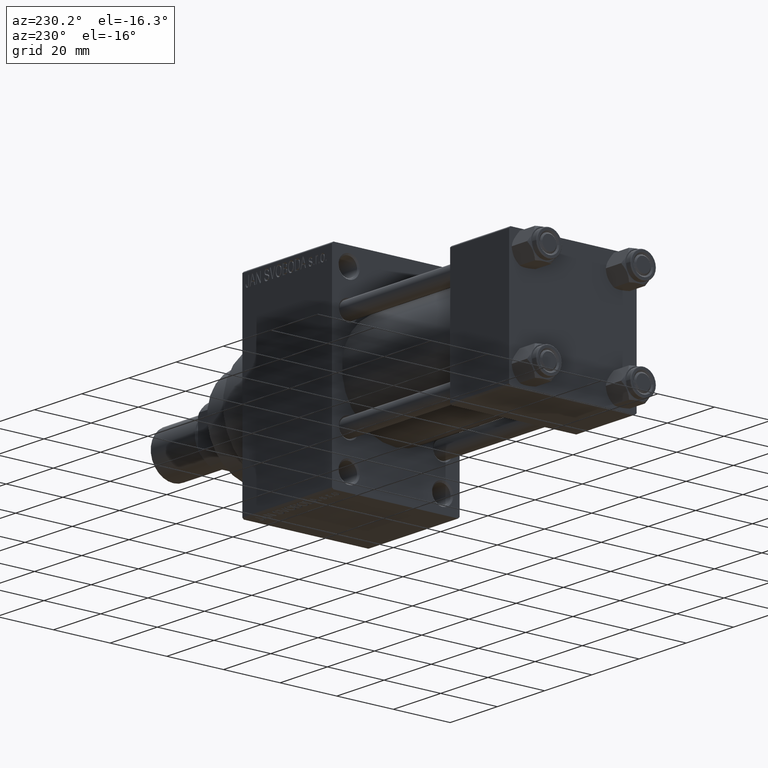
[diagram: clean part render]
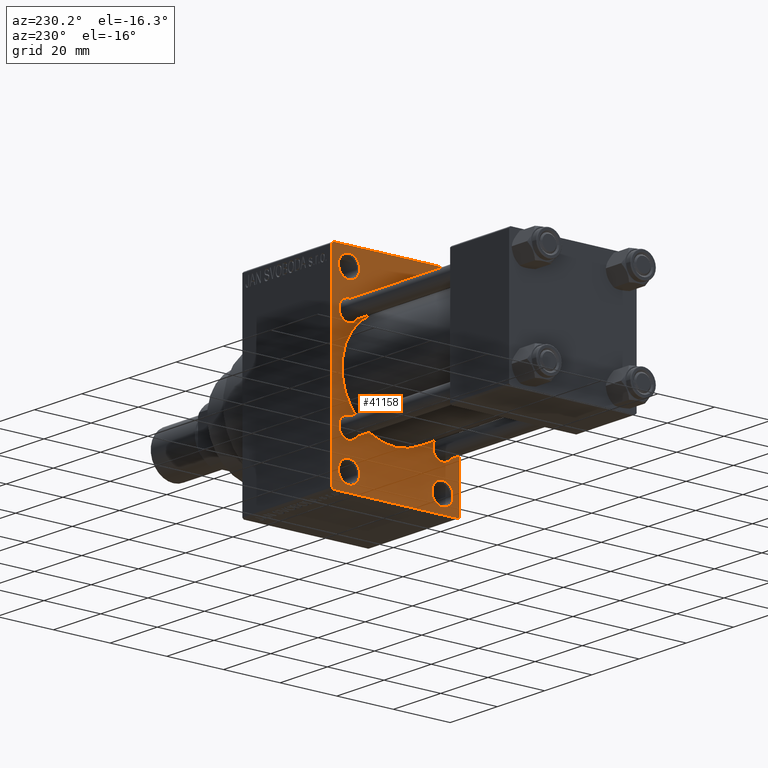
[diagram: same view with one face highlighted and labeled with its STEP entity id]
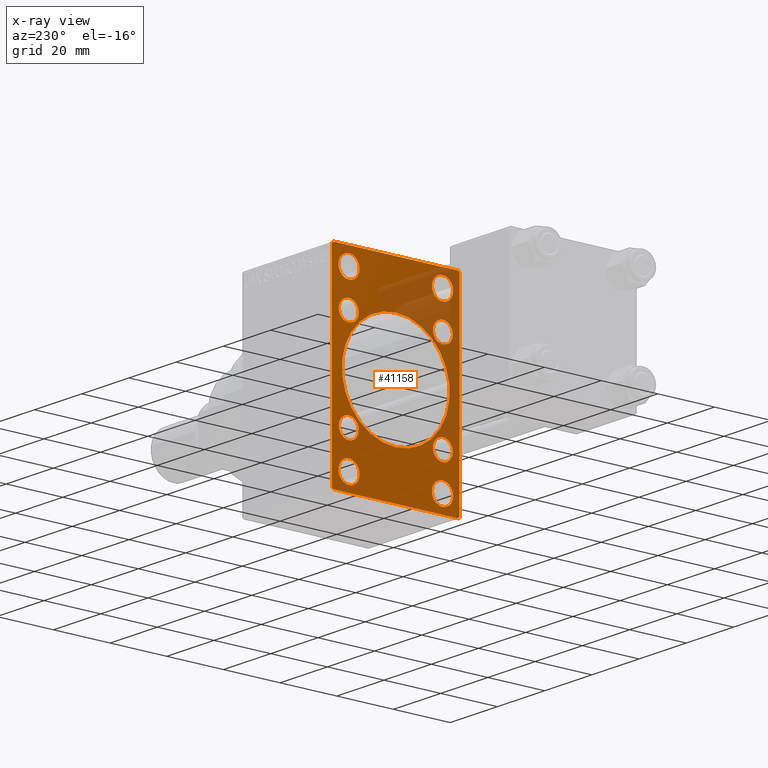
[diagram: x-ray of the same camera — body ghosted, the highlighted face saturated]
A machine part, auxiliary view. The second image highlights one B-rep face of the part: STEP entity #41158.
The next image is the same camera in x-ray: the body ghosted, the highlighted face saturated — about 27% of this face is hidden behind the body in this view.
In plain terms, the highlighted planar face has unit normal (-1, 0, 0).
Its self-contained STEP definition (entity closure, byte-faithful):
#78 = DIRECTION ( 'NONE',  ( 1.000000000000000000, 0.000000000000000000, 0.000000000000000000 ) ) ;
#118 = DIRECTION ( 'NONE',  ( 1.000000000000000000, 0.000000000000000000, 0.000000000000000000 ) ) ;
#331 = EDGE_CURVE ( 'NONE', #26239, #14909, #23267, .T. ) ;
#419 = FACE_BOUND ( 'NONE', #18226, .T. ) ;
#441 = CARTESIAN_POINT ( 'NONE',  ( 75.00000000000001421, 16.59999999999999787, -16.60000000000000497 ) ) ;
#457 = CARTESIAN_POINT ( 'NONE',  ( 75.00000000000001421, -16.59999999999999076, 16.60000000000000853 ) ) ;
#523 = CIRCLE ( 'NONE', #3563, 3.749999999999937383 ) ;
#715 = CARTESIAN_POINT ( 'NONE',  ( 75.00000000000001421, -16.59999999999999076, 16.60000000000000853 ) ) ;
#783 = CIRCLE ( 'NONE', #21506, 3.500000000000006661 ) ;
#1086 = VECTOR ( 'NONE', #18470, 999.9999999999998863 ) ;
#1496 = VERTEX_POINT ( 'NONE', #44782 ) ;
#1810 = DIRECTION ( 'NONE',  ( 1.000000000000000000, 0.000000000000000000, 0.000000000000000000 ) ) ;
#1949 = CIRCLE ( 'NONE', #34262, 3.500000000000006661 ) ;
#2002 = ORIENTED_EDGE ( 'NONE', *, *, #4255, .T. ) ;
#2331 = DIRECTION ( 'NONE',  ( 1.000000000000000000, 0.000000000000000000, 0.000000000000000000 ) ) ;
#2871 = VERTEX_POINT ( 'NONE', #45150 ) ;
#3020 = VERTEX_POINT ( 'NONE', #9211 ) ;
#3293 = ORIENTED_EDGE ( 'NONE', *, *, #5926, .T. ) ;
#3361 = EDGE_LOOP ( 'NONE', ( #46952, #3293 ) ) ;
#3498 = CARTESIAN_POINT ( 'NONE',  ( 75.00000000000001421, 16.59999999999999787, 16.60000000000000497 ) ) ;
#3563 = AXIS2_PLACEMENT_3D ( 'NONE', #21531, #29244, #43939 ) ;
#4038 = CIRCLE ( 'NONE', #39419, 19.00000000000000000 ) ;
#4155 = CARTESIAN_POINT ( 'NONE',  ( 75.00000000000001421, -2.602085213965210642E-15, 0.000000000000000000 ) ) ;
#4196 = VERTEX_POINT ( 'NONE', #35386 ) ;
#4248 = FACE_BOUND ( 'NONE', #26529, .T. ) ;
#4255 = EDGE_CURVE ( 'NONE', #8423, #7312, #4038, .T. ) ;
#4409 = CARTESIAN_POINT ( 'NONE',  ( 75.00000000000001421, -16.50000000000000000, 29.00000000000000711 ) ) ;
#4449 = CARTESIAN_POINT ( 'NONE',  ( 75.00000000000001421, 16.59999999999999787, -20.10000000000000853 ) ) ;
#4590 = CARTESIAN_POINT ( 'NONE',  ( 75.00000000000001421, 16.50000000000000000, -25.25000000000005684 ) ) ;
#4727 = DIRECTION ( 'NONE',  ( 1.000000000000000000, 0.000000000000000000, 0.000000000000000000 ) ) ;
#5512 = DIRECTION ( 'NONE',  ( 1.000000000000000000, 0.000000000000000000, 0.000000000000000000 ) ) ;
#5665 = DIRECTION ( 'NONE',  ( 1.000000000000000000, 0.000000000000000000, 0.000000000000000000 ) ) ;
#5881 = AXIS2_PLACEMENT_3D ( 'NONE', #12031, #26738, #19523 ) ;
#5926 = EDGE_CURVE ( 'NONE', #4196, #1496, #36363, .T. ) ;
#6157 = CARTESIAN_POINT ( 'NONE',  ( 75.00000000000001421, 16.50000000000000000, -28.99999999999999289 ) ) ;
#6543 = ORIENTED_EDGE ( 'NONE', *, *, #39150, .T. ) ;
#6928 = VECTOR ( 'NONE', #42971, 1000.000000000000000 ) ;
#7115 = DIRECTION ( 'NONE',  ( -0.000000000000000000, 0.000000000000000000, 1.000000000000000000 ) ) ;
#7124 = AXIS2_PLACEMENT_3D ( 'NONE', #16265, #28052, #42036 ) ;
#7220 = CARTESIAN_POINT ( 'NONE',  ( 75.00000000000001421, 22.49999999999999645, -35.00000000000000000 ) ) ;
#7237 = AXIS2_PLACEMENT_3D ( 'NONE', #441, #15329, #15088 ) ;
#7312 = VERTEX_POINT ( 'NONE', #45898 ) ;
#7584 = EDGE_LOOP ( 'NONE', ( #30370, #8203, #37138, #12806, #36183, #45031, #10840, #6543 ) ) ;
#7712 = CARTESIAN_POINT ( 'NONE',  ( 75.00000000000001421, 22.49999999999999645, 34.50000000000000000 ) ) ;
#7955 = ORIENTED_EDGE ( 'NONE', *, *, #18707, .T. ) ;
#8111 = AXIS2_PLACEMENT_3D ( 'NONE', #33151, #10721, #7115 ) ;
#8168 = EDGE_CURVE ( 'NONE', #1496, #4196, #9497, .T. ) ;
#8203 = ORIENTED_EDGE ( 'NONE', *, *, #10964, .T. ) ;
#8205 = VERTEX_POINT ( 'NONE', #43484 ) ;
#8423 = VERTEX_POINT ( 'NONE', #19156 ) ;
#8465 = CARTESIAN_POINT ( 'NONE',  ( 75.00000000000001421, 21.99999999999999645, -35.00000000000000000 ) ) ;
#8523 = EDGE_CURVE ( 'NONE', #26239, #2871, #46802, .T. ) ;
#8532 = AXIS2_PLACEMENT_3D ( 'NONE', #457, #22559, #14625 ) ;
#8814 = CARTESIAN_POINT ( 'NONE',  ( 75.00000000000001421, 22.49999999999999645, -34.50000000000000000 ) ) ;
#8877 = VERTEX_POINT ( 'NONE', #26556 ) ;
#8889 = VERTEX_POINT ( 'NONE', #8465 ) ;
#8894 = VERTEX_POINT ( 'NONE', #22919 ) ;
#9211 = CARTESIAN_POINT ( 'NONE',  ( 75.00000000000001421, -16.59999999999999076, 13.10000000000000142 ) ) ;
#9220 = DIRECTION ( 'NONE',  ( 0.000000000000000000, 0.000000000000000000, 1.000000000000000000 ) ) ;
#9497 = CIRCLE ( 'NONE', #25679, 3.749999999999933831 ) ;
#9840 = DIRECTION ( 'NONE',  ( 1.000000000000000000, 0.000000000000000000, 0.000000000000000000 ) ) ;
#9993 = DIRECTION ( 'NONE',  ( 0.000000000000000000, 0.000000000000000000, 1.000000000000000000 ) ) ;
#10295 = VECTOR ( 'NONE', #38869, 1000.000000000000000 ) ;
#10721 = DIRECTION ( 'NONE',  ( -1.000000000000000000, 0.000000000000000000, -0.000000000000000000 ) ) ;
#10840 = ORIENTED_EDGE ( 'NONE', *, *, #22557, .T. ) ;
#10964 = EDGE_CURVE ( 'NONE', #36017, #2871, #21812, .T. ) ;
#11726 = CARTESIAN_POINT ( 'NONE',  ( 75.00000000000001421, 16.59999999999999787, 20.10000000000001208 ) ) ;
#11826 = ORIENTED_EDGE ( 'NONE', *, *, #12177, .T. ) ;
#11948 = DIRECTION ( 'NONE',  ( -0.000000000000000000, 0.7071067811865474617, 0.7071067811865474617 ) ) ;
#12031 = CARTESIAN_POINT ( 'NONE',  ( 75.00000000000001421, -16.50000000000000000, -28.99999999999999289 ) ) ;
#12050 = EDGE_CURVE ( 'NONE', #36865, #25392, #20268, .T. ) ;
#12165 = EDGE_CURVE ( 'NONE', #20054, #8894, #31263, .T. ) ;
#12177 = EDGE_CURVE ( 'NONE', #40491, #20404, #523, .T. ) ;
#12806 = ORIENTED_EDGE ( 'NONE', *, *, #331, .T. ) ;
#12875 = CARTESIAN_POINT ( 'NONE',  ( 75.00000000000001421, -16.59999999999999076, 20.10000000000001208 ) ) ;
#13126 = EDGE_CURVE ( 'NONE', #33238, #8205, #23584, .T. ) ;
#13447 = CARTESIAN_POINT ( 'NONE',  ( 75.00000000000001421, 22.49999999999999645, 35.00000000000000000 ) ) ;
#13833 = CIRCLE ( 'NONE', #39992, 3.749999999999930278 ) ;
#14625 = DIRECTION ( 'NONE',  ( 0.000000000000000000, 0.000000000000000000, 1.000000000000000000 ) ) ;
#14782 = EDGE_LOOP ( 'NONE', ( #2002, #7955 ) ) ;
#14793 = LINE ( 'NONE', #15754, #17643 ) ;
#14909 = VERTEX_POINT ( 'NONE', #15402 ) ;
#15070 = FACE_BOUND ( 'NONE', #3361, .T. ) ;
#15088 = DIRECTION ( 'NONE',  ( 0.000000000000000000, 0.000000000000000000, 1.000000000000000000 ) ) ;
#15237 = CARTESIAN_POINT ( 'NONE',  ( 75.00000000000001421, -22.50000000000000355, 34.50000000000000000 ) ) ;
#15329 = DIRECTION ( 'NONE',  ( 1.000000000000000000, 0.000000000000000000, 0.000000000000000000 ) ) ;
#15402 = CARTESIAN_POINT ( 'NONE',  ( 75.00000000000001421, -21.99999999999998934, 35.00000000000000000 ) ) ;
#15472 = DIRECTION ( 'NONE',  ( 0.000000000000000000, 0.000000000000000000, 1.000000000000000000 ) ) ;
#15551 = FACE_BOUND ( 'NONE', #14782, .T. ) ;
#15754 = CARTESIAN_POINT ( 'NONE',  ( 75.00000000000001421, 28.49999999999999645, 28.49999999999999645 ) ) ;
#15882 = DIRECTION ( 'NONE',  ( -0.000000000000000000, -0.7071067811865474617, -0.7071067811865474617 ) ) ;
#15887 = CARTESIAN_POINT ( 'NONE',  ( 75.00000000000001421, 16.59999999999999787, 16.60000000000000497 ) ) ;
#16265 = CARTESIAN_POINT ( 'NONE',  ( 75.00000000000001421, 16.50000000000000000, 29.00000000000000355 ) ) ;
#16631 = CIRCLE ( 'NONE', #5881, 3.749999999999937383 ) ;
#17074 = DIRECTION ( 'NONE',  ( 0.000000000000000000, 0.000000000000000000, 1.000000000000000000 ) ) ;
#17406 = AXIS2_PLACEMENT_3D ( 'NONE', #43468, #5665, #42994 ) ;
#17408 = CIRCLE ( 'NONE', #20452, 3.500000000000003109 ) ;
#17643 = VECTOR ( 'NONE', #29498, 1000.000000000000114 ) ;
#17740 = VECTOR ( 'NONE', #11948, 1000.000000000000114 ) ;
#18226 = EDGE_LOOP ( 'NONE', ( #24033, #46965 ) ) ;
#18343 = ORIENTED_EDGE ( 'NONE', *, *, #46264, .T. ) ;
#18470 = DIRECTION ( 'NONE',  ( 0.000000000000000000, -0.7071067811865376918, 0.7071067811865574537 ) ) ;
#18707 = EDGE_CURVE ( 'NONE', #7312, #8423, #45323, .T. ) ;
#18839 = ORIENTED_EDGE ( 'NONE', *, *, #20836, .T. ) ;
#19156 = CARTESIAN_POINT ( 'NONE',  ( 75.00000000000001421, -2.602085213965210642E-15, 19.00000000000000000 ) ) ;
#19279 = EDGE_CURVE ( 'NONE', #36631, #23184, #14793, .T. ) ;
#19523 = DIRECTION ( 'NONE',  ( 0.000000000000000000, 0.000000000000000000, 1.000000000000000000 ) ) ;
#20054 = VERTEX_POINT ( 'NONE', #11726 ) ;
#20268 = CIRCLE ( 'NONE', #17406, 3.500000000000006661 ) ;
#20404 = VERTEX_POINT ( 'NONE', #25354 ) ;
#20452 = AXIS2_PLACEMENT_3D ( 'NONE', #715, #22101, #29592 ) ;
#20502 = EDGE_CURVE ( 'NONE', #8205, #33238, #13833, .T. ) ;
#20836 = EDGE_CURVE ( 'NONE', #8894, #20054, #783, .T. ) ;
#21110 = CARTESIAN_POINT ( 'NONE',  ( 75.00000000000001421, 21.99999999999999645, 35.00000000000000000 ) ) ;
#21152 = CARTESIAN_POINT ( 'NONE',  ( 75.00000000000001421, -16.50000000000000000, -28.99999999999999289 ) ) ;
#21316 = CARTESIAN_POINT ( 'NONE',  ( 75.00000000000001421, 16.50000000000000000, 29.00000000000000355 ) ) ;
#21423 = CARTESIAN_POINT ( 'NONE',  ( 75.00000000000001421, -16.50000000000000000, 32.74999999999993605 ) ) ;
#21506 = AXIS2_PLACEMENT_3D ( 'NONE', #15887, #5512, #26960 ) ;
#21531 = CARTESIAN_POINT ( 'NONE',  ( 75.00000000000001421, 16.50000000000000000, -28.99999999999999289 ) ) ;
#21812 = LINE ( 'NONE', #30014, #1086 ) ;
#21941 = EDGE_CURVE ( 'NONE', #36631, #14909, #38191, .T. ) ;
#22093 = ORIENTED_EDGE ( 'NONE', *, *, #25247, .T. ) ;
#22101 = DIRECTION ( 'NONE',  ( 1.000000000000000000, 0.000000000000000000, 0.000000000000000000 ) ) ;
#22192 = DIRECTION ( 'NONE',  ( 1.000000000000000000, 0.000000000000000000, 0.000000000000000000 ) ) ;
#22410 = VERTEX_POINT ( 'NONE', #45986 ) ;
#22483 = DIRECTION ( 'NONE',  ( 0.000000000000000000, 0.000000000000000000, 1.000000000000000000 ) ) ;
#22557 = EDGE_CURVE ( 'NONE', #23184, #29362, #39493, .T. ) ;
#22559 = DIRECTION ( 'NONE',  ( 1.000000000000000000, 0.000000000000000000, 0.000000000000000000 ) ) ;
#22628 = LINE ( 'NONE', #7220, #28850 ) ;
#22686 = VECTOR ( 'NONE', #15882, 1000.000000000000114 ) ;
#22755 = FACE_BOUND ( 'NONE', #29837, .T. ) ;
#22919 = CARTESIAN_POINT ( 'NONE',  ( 75.00000000000001421, 16.59999999999999787, 13.09999999999999609 ) ) ;
#23184 = VERTEX_POINT ( 'NONE', #7712 ) ;
#23267 = LINE ( 'NONE', #42051, #17740 ) ;
#23584 = CIRCLE ( 'NONE', #31295, 3.749999999999930278 ) ;
#24033 = ORIENTED_EDGE ( 'NONE', *, *, #13126, .T. ) ;
#24175 = EDGE_LOOP ( 'NONE', ( #11826, #31549 ) ) ;
#24465 = ORIENTED_EDGE ( 'NONE', *, *, #12165, .T. ) ;
#24586 = ORIENTED_EDGE ( 'NONE', *, *, #37082, .T. ) ;
#24590 = VECTOR ( 'NONE', #46937, 1000.000000000000000 ) ;
#24781 = EDGE_CURVE ( 'NONE', #3020, #42368, #41589, .T. ) ;
#25247 = EDGE_CURVE ( 'NONE', #37395, #42982, #40081, .T. ) ;
#25354 = CARTESIAN_POINT ( 'NONE',  ( 75.00000000000001421, 16.50000000000000000, -32.74999999999992895 ) ) ;
#25392 = VERTEX_POINT ( 'NONE', #32139 ) ;
#25416 = EDGE_LOOP ( 'NONE', ( #24586, #22093 ) ) ;
#25679 = AXIS2_PLACEMENT_3D ( 'NONE', #21316, #32194, #9993 ) ;
#25767 = EDGE_LOOP ( 'NONE', ( #29659, #18343 ) ) ;
#25890 = EDGE_CURVE ( 'NONE', #8877, #22410, #32430, .T. ) ;
#26239 = VERTEX_POINT ( 'NONE', #15237 ) ;
#26529 = EDGE_LOOP ( 'NONE', ( #42386, #35380 ) ) ;
#26556 = CARTESIAN_POINT ( 'NONE',  ( 75.00000000000001421, -16.50000000000000000, -25.25000000000005684 ) ) ;
#26738 = DIRECTION ( 'NONE',  ( 1.000000000000000000, 0.000000000000000000, 0.000000000000000000 ) ) ;
#26960 = DIRECTION ( 'NONE',  ( 0.000000000000000000, 0.000000000000000000, 1.000000000000000000 ) ) ;
#26999 = CIRCLE ( 'NONE', #37775, 3.749999999999937383 ) ;
#27039 = CARTESIAN_POINT ( 'NONE',  ( 75.00000000000001421, 16.59999999999999787, -13.09999999999999787 ) ) ;
#27329 = CARTESIAN_POINT ( 'NONE',  ( 75.00000000000001421, 22.49999999999999645, 35.00000000000000000 ) ) ;
#27918 = CARTESIAN_POINT ( 'NONE',  ( 75.00000000000001421, -2.602085213965210642E-15, 0.000000000000000000 ) ) ;
#28052 = DIRECTION ( 'NONE',  ( 1.000000000000000000, 0.000000000000000000, 0.000000000000000000 ) ) ;
#28387 = AXIS2_PLACEMENT_3D ( 'NONE', #4155, #78, #37139 ) ;
#28484 = CARTESIAN_POINT ( 'NONE',  ( 75.00000000000001421, -22.50000000000000355, 35.00000000000000000 ) ) ;
#28850 = VECTOR ( 'NONE', #36858, 1000.000000000000000 ) ;
#28941 = AXIS2_PLACEMENT_3D ( 'NONE', #3498, #32641, #22483 ) ;
#29244 = DIRECTION ( 'NONE',  ( 1.000000000000000000, 0.000000000000000000, 0.000000000000000000 ) ) ;
#29362 = VERTEX_POINT ( 'NONE', #8814 ) ;
#29407 = EDGE_CURVE ( 'NONE', #20404, #40491, #26999, .T. ) ;
#29498 = DIRECTION ( 'NONE',  ( 0.000000000000000000, 0.7071067811865474617, -0.7071067811865474617 ) ) ;
#29592 = DIRECTION ( 'NONE',  ( 0.000000000000000000, 0.000000000000000000, 1.000000000000000000 ) ) ;
#29659 = ORIENTED_EDGE ( 'NONE', *, *, #25890, .T. ) ;
#29765 = FACE_BOUND ( 'NONE', #25416, .T. ) ;
#29837 = EDGE_LOOP ( 'NONE', ( #24465, #18839 ) ) ;
#30014 = CARTESIAN_POINT ( 'NONE',  ( 75.00000000000001421, -28.50000000000030198, -28.49999999999951328 ) ) ;
#30370 = ORIENTED_EDGE ( 'NONE', *, *, #39731, .T. ) ;
#31263 = CIRCLE ( 'NONE', #28941, 3.500000000000006661 ) ;
#31295 = AXIS2_PLACEMENT_3D ( 'NONE', #37727, #4727, #42263 ) ;
#31519 = LINE ( 'NONE', #46205, #22686 ) ;
#31541 = DIRECTION ( 'NONE',  ( 0.000000000000000000, 0.000000000000000000, -1.000000000000000000 ) ) ;
#31549 = ORIENTED_EDGE ( 'NONE', *, *, #29407, .T. ) ;
#31703 = DIRECTION ( 'NONE',  ( 0.000000000000000000, 0.000000000000000000, 1.000000000000000000 ) ) ;
#31772 = DIRECTION ( 'NONE',  ( 1.000000000000000000, 0.000000000000000000, 0.000000000000000000 ) ) ;
#32139 = CARTESIAN_POINT ( 'NONE',  ( 75.00000000000001421, -16.59999999999999076, -13.10000000000000142 ) ) ;
#32194 = DIRECTION ( 'NONE',  ( 1.000000000000000000, 0.000000000000000000, 0.000000000000000000 ) ) ;
#32430 = CIRCLE ( 'NONE', #40118, 3.749999999999937383 ) ;
#32641 = DIRECTION ( 'NONE',  ( 1.000000000000000000, 0.000000000000000000, 0.000000000000000000 ) ) ;
#33151 = CARTESIAN_POINT ( 'NONE',  ( 75.00000000000001421, 0.000000000000000000, 0.000000000000000000 ) ) ;
#33238 = VERTEX_POINT ( 'NONE', #21423 ) ;
#33435 = ORIENTED_EDGE ( 'NONE', *, *, #41871, .T. ) ;
#33696 = CARTESIAN_POINT ( 'NONE',  ( 75.00000000000001421, -16.59999999999999076, -20.10000000000001208 ) ) ;
#34262 = AXIS2_PLACEMENT_3D ( 'NONE', #36931, #118, #40561 ) ;
#34516 = CARTESIAN_POINT ( 'NONE',  ( 75.00000000000001421, -21.99999999999997513, -35.00000000000000000 ) ) ;
#34673 = AXIS2_PLACEMENT_3D ( 'NONE', #37936, #1810, #9220 ) ;
#35380 = ORIENTED_EDGE ( 'NONE', *, *, #12050, .T. ) ;
#35386 = CARTESIAN_POINT ( 'NONE',  ( 75.00000000000001421, 16.50000000000000000, 25.25000000000007461 ) ) ;
#36017 = VERTEX_POINT ( 'NONE', #34516 ) ;
#36183 = ORIENTED_EDGE ( 'NONE', *, *, #21941, .F. ) ;
#36363 = CIRCLE ( 'NONE', #7124, 3.749999999999933831 ) ;
#36631 = VERTEX_POINT ( 'NONE', #21110 ) ;
#36750 = FACE_BOUND ( 'NONE', #39362, .T. ) ;
#36858 = DIRECTION ( 'NONE',  ( 0.000000000000000000, -1.000000000000000000, 0.000000000000000000 ) ) ;
#36865 = VERTEX_POINT ( 'NONE', #33696 ) ;
#36931 = CARTESIAN_POINT ( 'NONE',  ( 75.00000000000001421, -16.59999999999999076, -16.60000000000000853 ) ) ;
#37082 = EDGE_CURVE ( 'NONE', #42982, #37395, #41856, .T. ) ;
#37138 = ORIENTED_EDGE ( 'NONE', *, *, #8523, .F. ) ;
#37139 = DIRECTION ( 'NONE',  ( 0.000000000000000000, 0.000000000000000000, -1.000000000000000000 ) ) ;
#37235 = FACE_BOUND ( 'NONE', #25767, .T. ) ;
#37395 = VERTEX_POINT ( 'NONE', #4449 ) ;
#37727 = CARTESIAN_POINT ( 'NONE',  ( 75.00000000000001421, -16.50000000000000000, 29.00000000000000711 ) ) ;
#37775 = AXIS2_PLACEMENT_3D ( 'NONE', #6157, #2331, #31703 ) ;
#37936 = CARTESIAN_POINT ( 'NONE',  ( 75.00000000000001421, 16.59999999999999787, -16.60000000000000497 ) ) ;
#38191 = LINE ( 'NONE', #27329, #6928 ) ;
#38869 = DIRECTION ( 'NONE',  ( 0.000000000000000000, 0.000000000000000000, -1.000000000000000000 ) ) ;
#39150 = EDGE_CURVE ( 'NONE', #29362, #8889, #31519, .T. ) ;
#39362 = EDGE_LOOP ( 'NONE', ( #33435, #47305 ) ) ;
#39419 = AXIS2_PLACEMENT_3D ( 'NONE', #27918, #9840, #31541 ) ;
#39493 = LINE ( 'NONE', #13447, #24590 ) ;
#39731 = EDGE_CURVE ( 'NONE', #8889, #36017, #22628, .T. ) ;
#39992 = AXIS2_PLACEMENT_3D ( 'NONE', #4409, #22192, #15472 ) ;
#40081 = CIRCLE ( 'NONE', #34673, 3.500000000000006661 ) ;
#40118 = AXIS2_PLACEMENT_3D ( 'NONE', #21152, #31772, #17074 ) ;
#40491 = VERTEX_POINT ( 'NONE', #4590 ) ;
#40561 = DIRECTION ( 'NONE',  ( 0.000000000000000000, 0.000000000000000000, 1.000000000000000000 ) ) ;
#41088 = FACE_BOUND ( 'NONE', #24175, .T. ) ;
#41158 = ADVANCED_FACE ( 'NONE', ( #419, #37235, #41088, #15070, #36750, #22755, #29765, #4248, #15551, #43739 ), #44467, .T. ) ;
#41589 = CIRCLE ( 'NONE', #8532, 3.500000000000003109 ) ;
#41856 = CIRCLE ( 'NONE', #7237, 3.500000000000006661 ) ;
#41871 = EDGE_CURVE ( 'NONE', #42368, #3020, #17408, .T. ) ;
#42036 = DIRECTION ( 'NONE',  ( 0.000000000000000000, 0.000000000000000000, 1.000000000000000000 ) ) ;
#42051 = CARTESIAN_POINT ( 'NONE',  ( 75.00000000000001421, -28.49999999999999645, 28.49999999999999645 ) ) ;
#42263 = DIRECTION ( 'NONE',  ( 0.000000000000000000, 0.000000000000000000, 1.000000000000000000 ) ) ;
#42368 = VERTEX_POINT ( 'NONE', #12875 ) ;
#42386 = ORIENTED_EDGE ( 'NONE', *, *, #42806, .T. ) ;
#42806 = EDGE_CURVE ( 'NONE', #25392, #36865, #1949, .T. ) ;
#42971 = DIRECTION ( 'NONE',  ( 0.000000000000000000, -1.000000000000000000, 0.000000000000000000 ) ) ;
#42982 = VERTEX_POINT ( 'NONE', #27039 ) ;
#42994 = DIRECTION ( 'NONE',  ( 0.000000000000000000, 0.000000000000000000, 1.000000000000000000 ) ) ;
#43468 = CARTESIAN_POINT ( 'NONE',  ( 75.00000000000001421, -16.59999999999999076, -16.60000000000000853 ) ) ;
#43484 = CARTESIAN_POINT ( 'NONE',  ( 75.00000000000001421, -16.50000000000000000, 25.25000000000007816 ) ) ;
#43739 = FACE_OUTER_BOUND ( 'NONE', #7584, .T. ) ;
#43939 = DIRECTION ( 'NONE',  ( 0.000000000000000000, 0.000000000000000000, 1.000000000000000000 ) ) ;
#44467 = PLANE ( 'NONE',  #8111 ) ;
#44782 = CARTESIAN_POINT ( 'NONE',  ( 75.00000000000001421, 16.50000000000000000, 32.74999999999992895 ) ) ;
#45031 = ORIENTED_EDGE ( 'NONE', *, *, #19279, .T. ) ;
#45150 = CARTESIAN_POINT ( 'NONE',  ( 75.00000000000001421, -22.50000000000000355, -34.49999999999997158 ) ) ;
#45323 = CIRCLE ( 'NONE', #28387, 19.00000000000000000 ) ;
#45898 = CARTESIAN_POINT ( 'NONE',  ( 75.00000000000001421, -2.752562955852396712E-16, -19.00000000000000000 ) ) ;
#45986 = CARTESIAN_POINT ( 'NONE',  ( 75.00000000000001421, -16.50000000000000000, -32.74999999999992895 ) ) ;
#46205 = CARTESIAN_POINT ( 'NONE',  ( 75.00000000000001421, 28.49999999999999645, -28.49999999999999645 ) ) ;
#46264 = EDGE_CURVE ( 'NONE', #22410, #8877, #16631, .T. ) ;
#46802 = LINE ( 'NONE', #28484, #10295 ) ;
#46937 = DIRECTION ( 'NONE',  ( 0.000000000000000000, 0.000000000000000000, -1.000000000000000000 ) ) ;
#46952 = ORIENTED_EDGE ( 'NONE', *, *, #8168, .T. ) ;
#46965 = ORIENTED_EDGE ( 'NONE', *, *, #20502, .T. ) ;
#47305 = ORIENTED_EDGE ( 'NONE', *, *, #24781, .T. ) ;